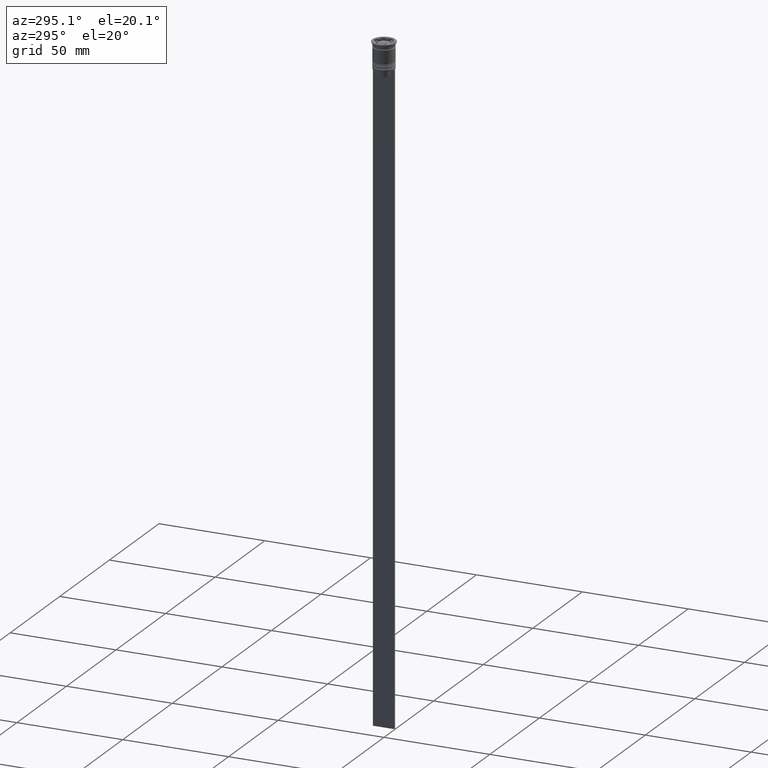
[diagram: clean part render]
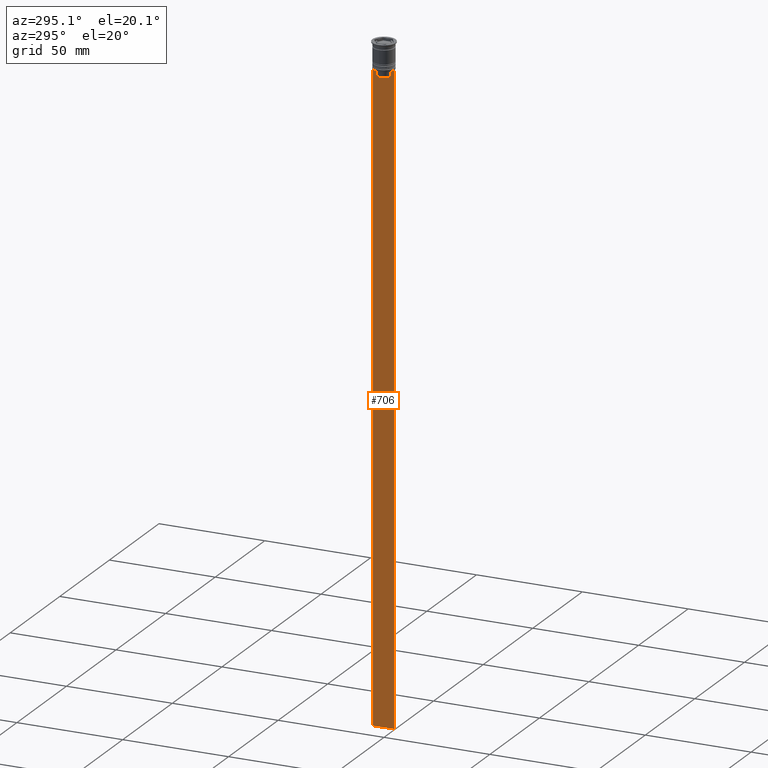
[diagram: same view with one face highlighted and labeled with its STEP entity id]
A machine part, auxiliary view. The second image highlights one B-rep face of the part: STEP entity #706.
In plain terms, the highlighted planar face has unit normal (-1, 0, 0).
Its self-contained STEP definition (entity closure, byte-faithful):
#41 = DIRECTION ( 'NONE',  ( 0.000000000000000000, 0.000000000000000000, -1.000000000000000000 ) ) ;
#43 = CARTESIAN_POINT ( 'NONE',  ( -0.5000000000000000000, -3.531412985305424801, -12.83345201382502765 ) ) ;
#92 = VERTEX_POINT ( 'NONE', #2324 ) ;
#95 = ORIENTED_EDGE ( 'NONE', *, *, #1896, .F. ) ;
#140 = CARTESIAN_POINT ( 'NONE',  ( -0.5000000000000000000, 3.363034344160045652, -15.50000000000000000 ) ) ;
#193 = VECTOR ( 'NONE', #1356, 1000.000000000000000 ) ;
#229 = VERTEX_POINT ( 'NONE', #2183 ) ;
#241 = VECTOR ( 'NONE', #309, 1000.000000000000000 ) ;
#257 = DIRECTION ( 'NONE',  ( 0.000000000000000000, -1.000000000000000000, 0.000000000000000000 ) ) ;
#258 = ORIENTED_EDGE ( 'NONE', *, *, #435, .F. ) ;
#293 = VERTEX_POINT ( 'NONE', #2087 ) ;
#297 = EDGE_CURVE ( 'NONE', #809, #894, #655, .T. ) ;
#303 = CARTESIAN_POINT ( 'NONE',  ( -0.5000000000000000000, -3.363034344160045208, 0.000000000000000000 ) ) ;
#309 = DIRECTION ( 'NONE',  ( 0.000000000000000000, 1.000000000000000000, 0.000000000000000000 ) ) ;
#318 = LINE ( 'NONE', #952, #337 ) ;
#337 = VECTOR ( 'NONE', #1125, 1000.000000000000000 ) ;
#365 = EDGE_CURVE ( 'NONE', #1685, #1971, #954, .T. ) ;
#372 = AXIS2_PLACEMENT_3D ( 'NONE', #652, #1639, #485 ) ;
#380 = VECTOR ( 'NONE', #41, 1000.000000000000000 ) ;
#382 = EDGE_CURVE ( 'NONE', #229, #809, #1285, .T. ) ;
#391 = ORIENTED_EDGE ( 'NONE', *, *, #847, .F. ) ;
#400 = EDGE_CURVE ( 'NONE', #2134, #1096, #1670, .T. ) ;
#416 = CARTESIAN_POINT ( 'NONE',  ( -0.5000000000000000000, -4.999999999999999112, -312.5000000000000000 ) ) ;
#435 = EDGE_CURVE ( 'NONE', #894, #1998, #918, .T. ) ;
#452 = EDGE_CURVE ( 'NONE', #641, #1398, #978, .T. ) ;
#460 = CARTESIAN_POINT ( 'NONE',  ( -0.5000000000000000000, -4.999999999999999112, -12.50000000000000000 ) ) ;
#485 = DIRECTION ( 'NONE',  ( 0.000000000000000000, 0.000000000000000000, 1.000000000000000000 ) ) ;
#509 = ORIENTED_EDGE ( 'NONE', *, *, #400, .F. ) ;
#518 = CARTESIAN_POINT ( 'NONE',  ( -0.5000000000000000000, -3.867815921162742754, -12.50000000000000000 ) ) ;
#526 = ORIENTED_EDGE ( 'NONE', *, *, #297, .F. ) ;
#546 = VECTOR ( 'NONE', #2096, 1000.000000000000000 ) ;
#567 = CARTESIAN_POINT ( 'NONE',  ( -0.5000000000000000000, -4.999999999999999112, -12.50000000000000000 ) ) ;
#614 = DIRECTION ( 'NONE',  ( 0.000000000000000000, -1.000000000000000000, 0.000000000000000000 ) ) ;
#641 = VERTEX_POINT ( 'NONE', #416 ) ;
#644 = EDGE_CURVE ( 'NONE', #92, #1685, #2386, .T. ) ;
#652 = CARTESIAN_POINT ( 'NONE',  ( -0.5000000000000000000, -4.999999999999999112, -2.450124378879110054 ) ) ;
#655 = LINE ( 'NONE', #460, #1816 ) ;
#684 = FACE_OUTER_BOUND ( 'NONE', #1194, .T. ) ;
#706 = ADVANCED_FACE ( 'NONE', ( #684 ), #2230, .T. ) ;
#708 = CARTESIAN_POINT ( 'NONE',  ( -0.5000000000000000000, 3.363034344160045208, -13.00000000000000178 ) ) ;
#809 = VERTEX_POINT ( 'NONE', #2472 ) ;
#847 = EDGE_CURVE ( 'NONE', #293, #92, #1919, .T. ) ;
#894 = VERTEX_POINT ( 'NONE', #941 ) ;
#897 = EDGE_CURVE ( 'NONE', #293, #1398, #951, .T. ) ;
#918 = LINE ( 'NONE', #567, #193 ) ;
#923 = VECTOR ( 'NONE', #1111, 1000.000000000000000 ) ;
#941 = CARTESIAN_POINT ( 'NONE',  ( -0.5000000000000000000, -4.874423042781575788, -12.50000000000000000 ) ) ;
#951 = LINE ( 'NONE', #1497, #546 ) ;
#952 = CARTESIAN_POINT ( 'NONE',  ( -0.5000000000000000000, -4.999999999999999112, -2.450124378879110054 ) ) ;
#954 = B_SPLINE_CURVE_WITH_KNOTS ( 'NONE', 3,
 ( #1655, #2474, #2438, #708 ),
 .UNSPECIFIED., .F., .F.,
 ( 4, 4 ),
 ( 0.006644825462451552783, 0.007355321358912435097 ),
 .UNSPECIFIED. ) ;
#978 = LINE ( 'NONE', #1547, #241 ) ;
#1088 = CARTESIAN_POINT ( 'NONE',  ( -0.5000000000000000000, -3.363034344160045208, -13.00000000000000178 ) ) ;
#1096 = VERTEX_POINT ( 'NONE', #1268 ) ;
#1111 = DIRECTION ( 'NONE',  ( -0.000000000000000000, -0.000000000000000000, 1.000000000000000000 ) ) ;
#1114 = DIRECTION ( 'NONE',  ( 0.000000000000000000, -1.000000000000000000, 0.000000000000000000 ) ) ;
#1125 = DIRECTION ( 'NONE',  ( 0.000000000000000000, 0.000000000000000000, -1.000000000000000000 ) ) ;
#1193 = CARTESIAN_POINT ( 'NONE',  ( -0.5000000000000000000, 5.000000000000000888, -312.5000000000000000 ) ) ;
#1194 = EDGE_LOOP ( 'NONE', ( #2206, #2553, #391, #2444, #1789, #2152, #258, #526, #2288, #1873, #509, #95 ) ) ;
#1268 = CARTESIAN_POINT ( 'NONE',  ( -0.5000000000000000000, -3.363034344160045652, -15.50000000000000000 ) ) ;
#1280 = EDGE_CURVE ( 'NONE', #1096, #229, #1493, .T. ) ;
#1285 = B_SPLINE_CURVE_WITH_KNOTS ( 'NONE', 3,
 ( #1088, #43, #2283, #518 ),
 .UNSPECIFIED., .F., .F.,
 ( 4, 4 ),
 ( 0.01632394437298965648, 0.01703543518243618576 ),
 .UNSPECIFIED. ) ;
#1291 = VECTOR ( 'NONE', #614, 1000.000000000000000 ) ;
#1356 = DIRECTION ( 'NONE',  ( 0.000000000000000000, -1.000000000000000000, 0.000000000000000000 ) ) ;
#1398 = VERTEX_POINT ( 'NONE', #1193 ) ;
#1475 = LINE ( 'NONE', #1668, #380 ) ;
#1493 = LINE ( 'NONE', #303, #923 ) ;
#1497 = CARTESIAN_POINT ( 'NONE',  ( -0.5000000000000000000, 5.000000000000000888, -2.450124378879110054 ) ) ;
#1547 = CARTESIAN_POINT ( 'NONE',  ( -0.5000000000000000000, -4.999999999999999112, -312.5000000000000000 ) ) ;
#1639 = DIRECTION ( 'NONE',  ( -1.000000000000000000, 0.000000000000000000, 0.000000000000000000 ) ) ;
#1644 = CARTESIAN_POINT ( 'NONE',  ( -0.5000000000000000000, 3.399999999999998135, -15.50000000000000000 ) ) ;
#1655 = CARTESIAN_POINT ( 'NONE',  ( -0.5000000000000000000, 3.867815921162742754, -12.50000000000000000 ) ) ;
#1668 = CARTESIAN_POINT ( 'NONE',  ( -0.5000000000000000000, 3.363034344160045208, 0.000000000000000000 ) ) ;
#1670 = LINE ( 'NONE', #1644, #1777 ) ;
#1685 = VERTEX_POINT ( 'NONE', #1874 ) ;
#1777 = VECTOR ( 'NONE', #257, 1000.000000000000000 ) ;
#1789 = ORIENTED_EDGE ( 'NONE', *, *, #452, .F. ) ;
#1816 = VECTOR ( 'NONE', #2272, 1000.000000000000000 ) ;
#1850 = CARTESIAN_POINT ( 'NONE',  ( -0.5000000000000000000, 3.363034344160045208, -13.00000000000000178 ) ) ;
#1873 = ORIENTED_EDGE ( 'NONE', *, *, #1280, .F. ) ;
#1874 = CARTESIAN_POINT ( 'NONE',  ( -0.5000000000000000000, 3.867815921162742754, -12.50000000000000000 ) ) ;
#1896 = EDGE_CURVE ( 'NONE', #1971, #2134, #1475, .T. ) ;
#1919 = LINE ( 'NONE', #2123, #2034 ) ;
#1971 = VERTEX_POINT ( 'NONE', #1850 ) ;
#1998 = VERTEX_POINT ( 'NONE', #2270 ) ;
#2034 = VECTOR ( 'NONE', #1114, 1000.000000000000000 ) ;
#2087 = CARTESIAN_POINT ( 'NONE',  ( -0.5000000000000000000, 5.000000000000000888, -12.50000000000000000 ) ) ;
#2096 = DIRECTION ( 'NONE',  ( 0.000000000000000000, 0.000000000000000000, -1.000000000000000000 ) ) ;
#2123 = CARTESIAN_POINT ( 'NONE',  ( -0.5000000000000000000, -4.999999999999999112, -12.50000000000000000 ) ) ;
#2134 = VERTEX_POINT ( 'NONE', #140 ) ;
#2146 = EDGE_CURVE ( 'NONE', #1998, #641, #318, .T. ) ;
#2152 = ORIENTED_EDGE ( 'NONE', *, *, #2146, .F. ) ;
#2169 = CARTESIAN_POINT ( 'NONE',  ( -0.5000000000000000000, -4.999999999999999112, -12.50000000000000000 ) ) ;
#2183 = CARTESIAN_POINT ( 'NONE',  ( -0.5000000000000000000, -3.363034344160045208, -13.00000000000000178 ) ) ;
#2206 = ORIENTED_EDGE ( 'NONE', *, *, #365, .F. ) ;
#2230 = PLANE ( 'NONE',  #372 ) ;
#2270 = CARTESIAN_POINT ( 'NONE',  ( -0.5000000000000000000, -4.999999999999999112, -12.50000000000000000 ) ) ;
#2272 = DIRECTION ( 'NONE',  ( 0.000000000000000000, -1.000000000000000000, 0.000000000000000000 ) ) ;
#2283 = CARTESIAN_POINT ( 'NONE',  ( -0.5000000000000000000, -3.699658232838647365, -12.66676999593996555 ) ) ;
#2288 = ORIENTED_EDGE ( 'NONE', *, *, #382, .F. ) ;
#2324 = CARTESIAN_POINT ( 'NONE',  ( -0.5000000000000000000, 4.874423042781575788, -12.50000000000000000 ) ) ;
#2386 = LINE ( 'NONE', #2169, #1291 ) ;
#2438 = CARTESIAN_POINT ( 'NONE',  ( -0.5000000000000000000, 3.531412678228260216, -12.83345231756357840 ) ) ;
#2444 = ORIENTED_EDGE ( 'NONE', *, *, #897, .T. ) ;
#2472 = CARTESIAN_POINT ( 'NONE',  ( -0.5000000000000000000, -3.867815921162742754, -12.50000000000000000 ) ) ;
#2474 = CARTESIAN_POINT ( 'NONE',  ( -0.5000000000000000000, 3.699657965831574913, -12.66677026074361301 ) ) ;
#2553 = ORIENTED_EDGE ( 'NONE', *, *, #644, .F. ) ;